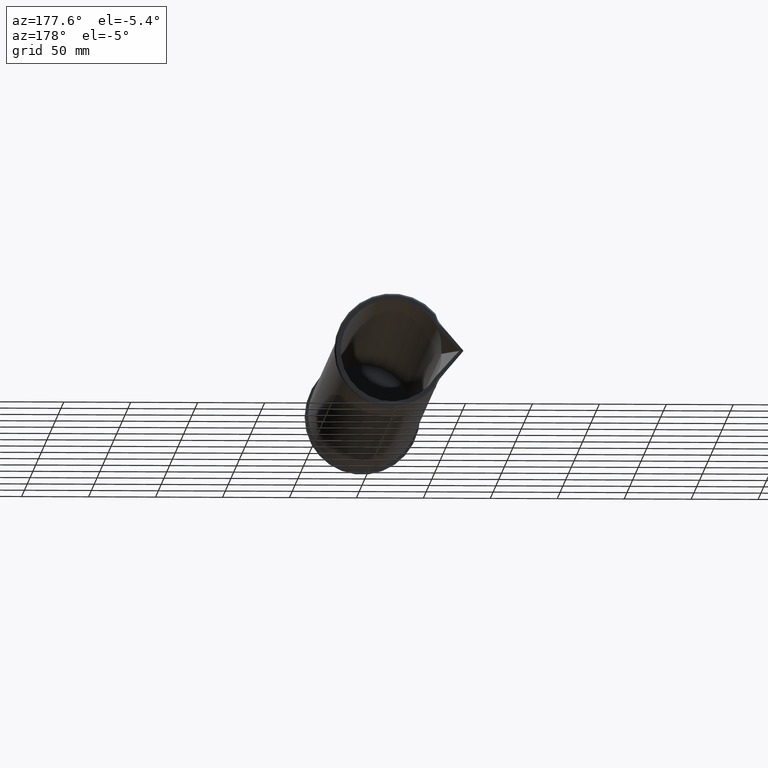
[diagram: clean part render]
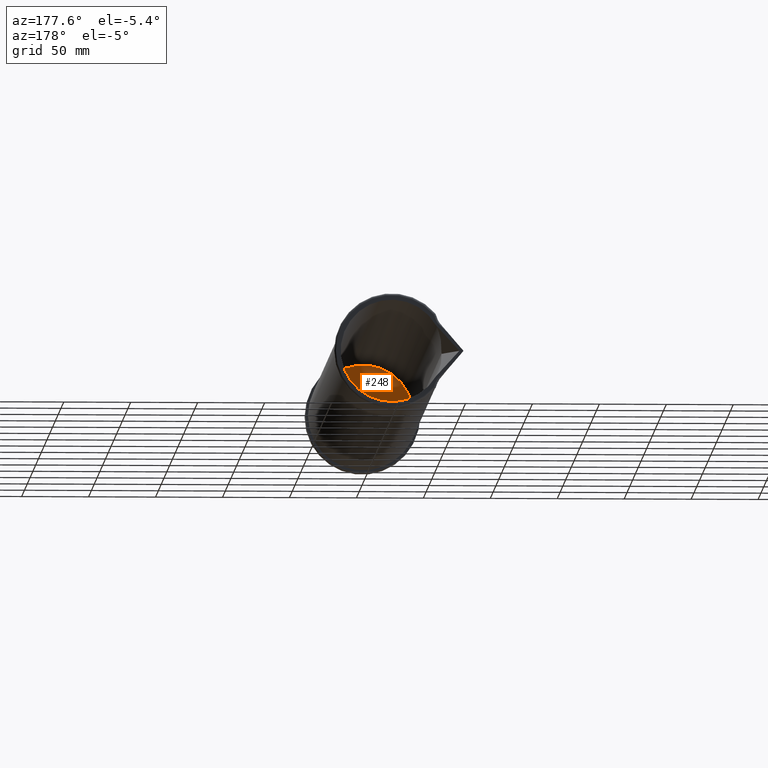
[diagram: same view with one face highlighted and labeled with its STEP entity id]
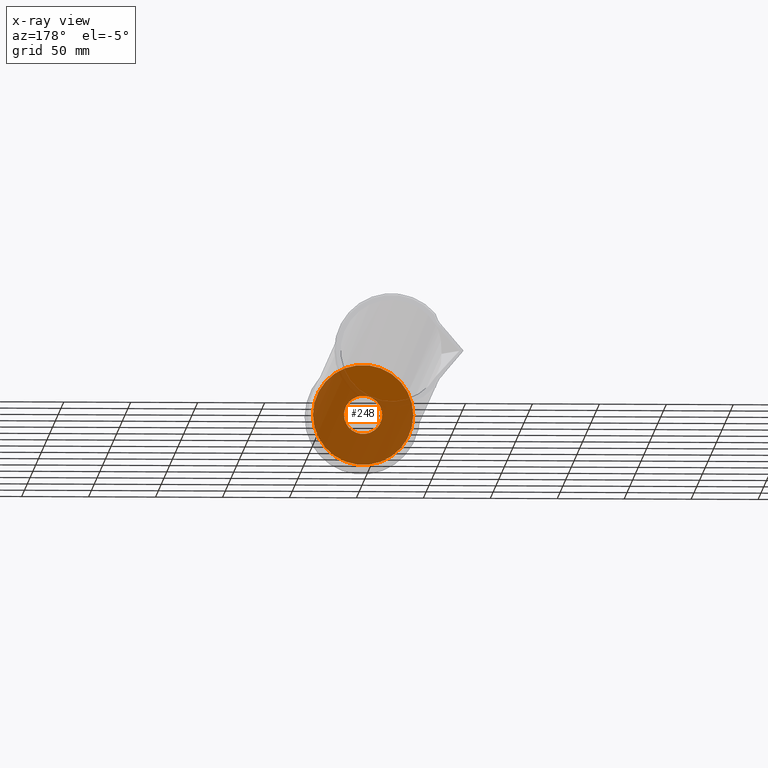
[diagram: x-ray of the same camera — body ghosted, the highlighted face saturated]
A machine part, auxiliary view. The second image highlights one B-rep face of the part: STEP entity #248.
The next image is the same camera in x-ray: the body ghosted, the highlighted face saturated — about 76% of this face is hidden behind the body in this view.
In plain terms, the highlighted planar face has unit normal (0, 1, 0).
Its self-contained STEP definition (entity closure, byte-faithful):
#145=CARTESIAN_POINT('',(0.562500000000000,0.750000000000000,0.0));
#146=VERTEX_POINT('',#145);
#147=CARTESIAN_POINT('',(0.0,0.750000000000000,0.0));
#148=DIRECTION('',(0.0,-1.0,0.0));
#149=DIRECTION('',(1.0,0.0,0.0));
#150=AXIS2_PLACEMENT_3D('',#147,#148,#149);
#151=CIRCLE('',#150,0.562500000000000);
#152=EDGE_CURVE('',#146,#146,#151,.T.);
#229=CARTESIAN_POINT('',(0.737500000000000,0.750000000000000,0.0));
#230=DIRECTION('',(0.0,1.0,0.0));
#231=DIRECTION('',(0.0,0.0,1.0));
#232=AXIS2_PLACEMENT_3D('',#229,#230,#231);
#233=PLANE('',#232);
#234=CARTESIAN_POINT('',(1.475000000000000,0.750000000000000,0.0));
#235=VERTEX_POINT('',#234);
#236=CARTESIAN_POINT('',(0.0,0.750000000000000,0.0));
#237=DIRECTION('',(0.0,-1.0,0.0));
#238=DIRECTION('',(1.0,0.0,0.0));
#239=AXIS2_PLACEMENT_3D('',#236,#237,#238);
#240=CIRCLE('',#239,1.475000000000000);
#241=EDGE_CURVE('',#235,#235,#240,.T.);
#242=ORIENTED_EDGE('',*,*,#241,.F.);
#243=EDGE_LOOP('',(#242));
#244=FACE_OUTER_BOUND('',#243,.T.);
#245=ORIENTED_EDGE('',*,*,#152,.T.);
#246=EDGE_LOOP('',(#245));
#247=FACE_BOUND('',#246,.T.);
#248=ADVANCED_FACE('',(#244,#247),#233,.T.);